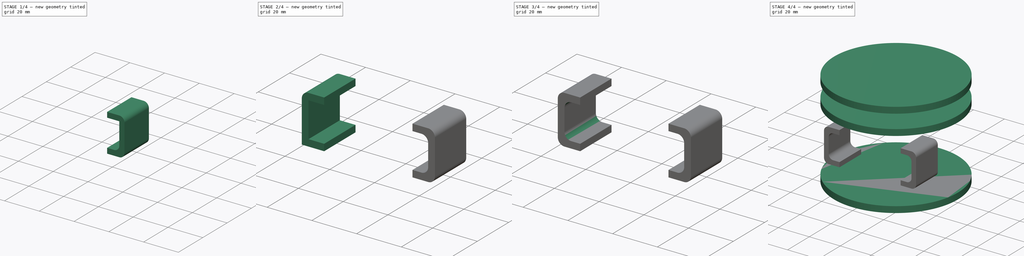
[diagram: build sequence overview — one tinted view per stage of 4, left to right]
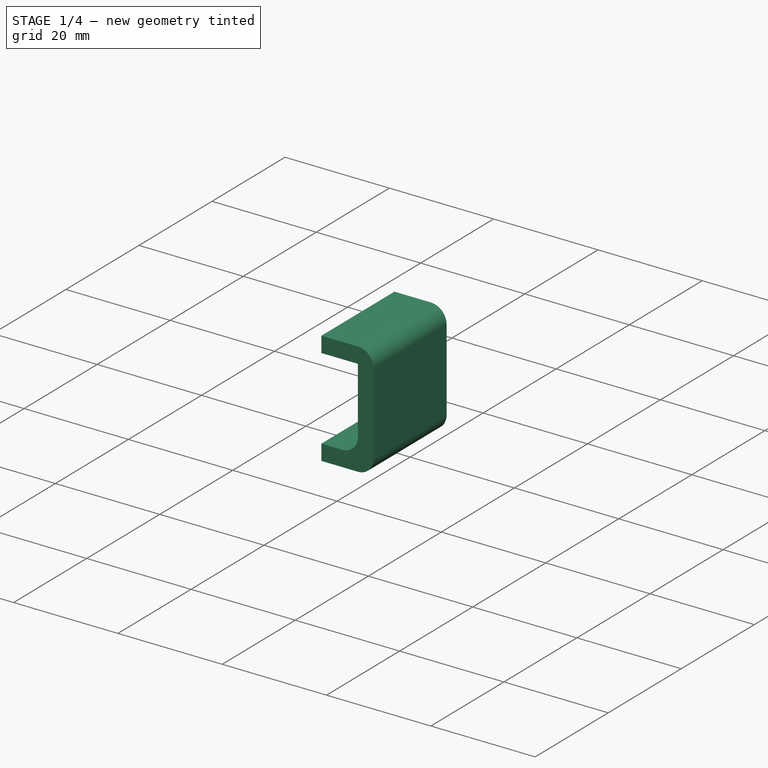
[diagram: stage 1 of 4 — iso view after this stage's code; geometry added in this stage tinted green]
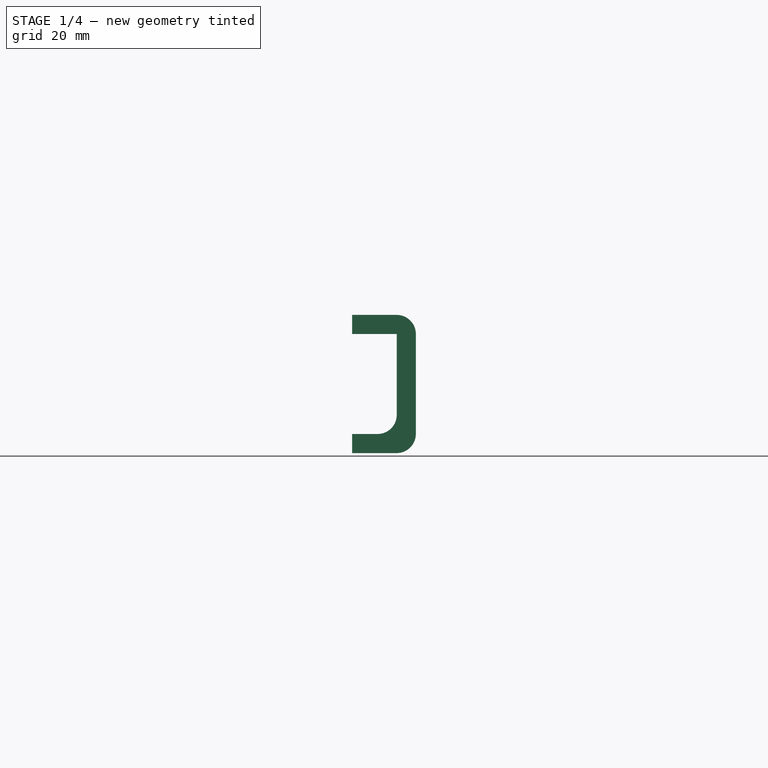
[diagram: stage 1 of 4 — front view after this stage's code; geometry added in this stage tinted green]
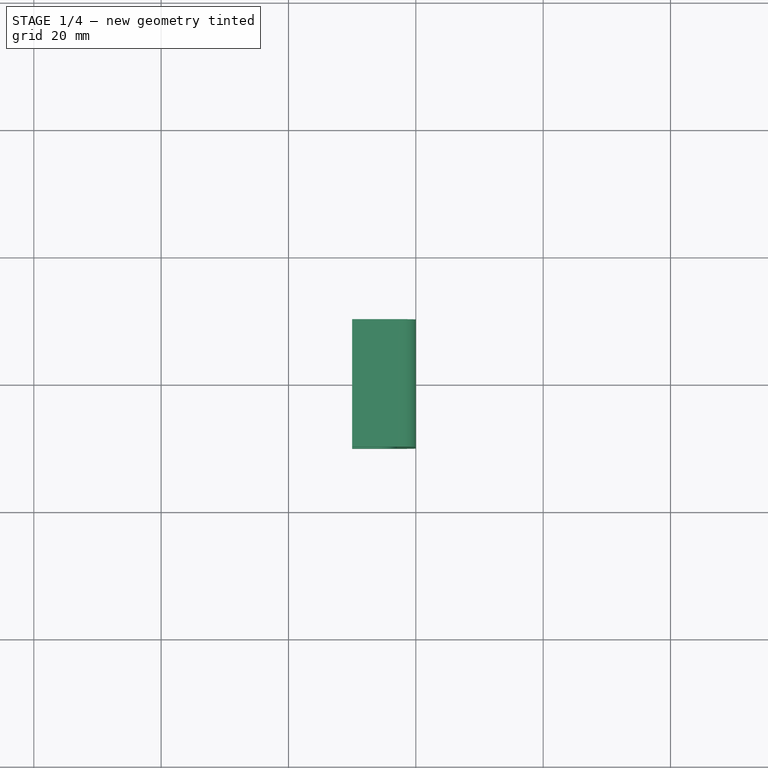
[diagram: stage 1 of 4 — top view after this stage's code; geometry added in this stage tinted green]
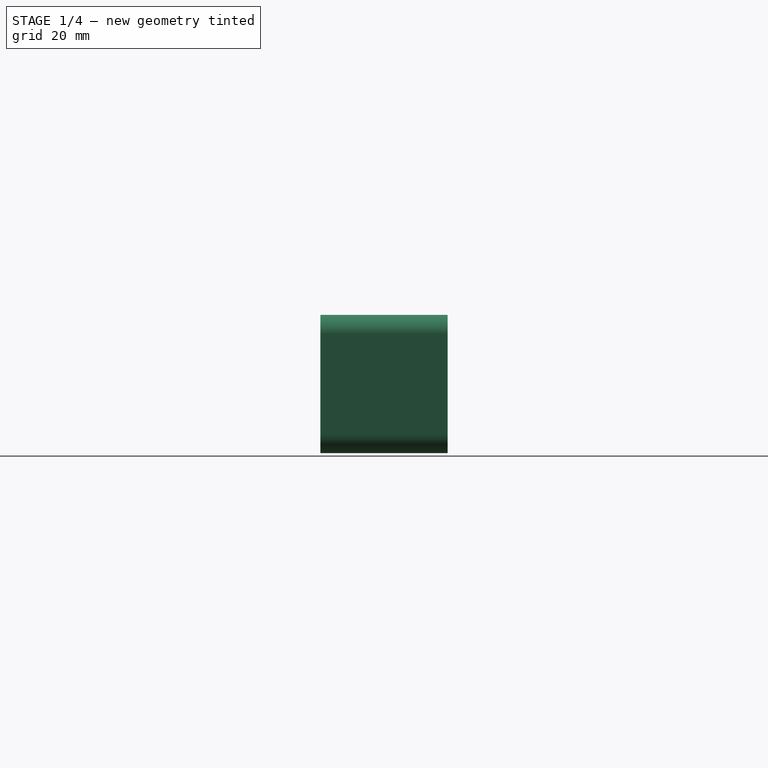
[diagram: stage 1 of 4 — right view after this stage's code; geometry added in this stage tinted green]
FCSTD DOCUMENT  (FreeCAD 0.17R7837 (Git))
Label: ConnectorRivet
License: All rights reserved
LicenseURL: http://en.wikipedia.org/wiki/All_rights_reserved
objects: Sketcher::SketchObject×9, Part::Fillet×8, PartDesign::Body×6, PartDesign::Pad×4, Part::Sweep×2, Part::Feature×1, App::MeasureDistance×1
note: 34 computed .brp shape members not serialized (recipe doc carries the construction recipe); baked Part::Feature solids carry a one-line shape summary decoded from their .brp

FEATURE [Sketcher::SketchObject] Sketch006
  MapMode = 5
  Support = -> [XY_Plane004]
  sketch-geometry (1):
    g0: Circle CenterX=-34.0339 CenterY=-4.94797 CenterZ=0 NormalX=0 NormalY=0 NormalZ=1 Radius=0.078105
FEATURE [PartDesign::Body] Body004
  Model = -> [Sketch004,Sketch005,Sketch006]
  Origin = -> Body004Origin
FEATURE [PartDesign::Body] Body005
  Origin = -> Body005Origin
FEATURE [Sketcher::SketchObject] Sketch007
  MapMode = 5
  Placement = pos=(0,0,0) rot=(0,0.707107,0.707107;3.14159rad)
  Support = -> [XZ_Plane006]
  superPlacement = pos=(0,0,0) rot=(0,1,0;3.14159rad)
  sketch-geometry (8):
    g0: LineSegment StartX=-10 StartY=25.7 StartZ=0 EndX=-20 EndY=25.7 EndZ=0
    g1: LineSegment StartX=-20 StartY=25.7 StartZ=0 EndX=-20 EndY=4 EndZ=0
    g2: LineSegment StartX=-20 StartY=4 StartZ=0 EndX=-10 EndY=4 EndZ=0
    g3: LineSegment StartX=-10 StartY=4 StartZ=0 EndX=-10 EndY=7 EndZ=0
    g4: LineSegment StartX=-10 StartY=7 StartZ=0 EndX=-17 EndY=7 EndZ=0
    g5: LineSegment StartX=-17 StartY=7 StartZ=0 EndX=-17 EndY=22.7 EndZ=0
    g6: LineSegment StartX=-17 StartY=22.7 StartZ=0 EndX=-10 EndY=22.7 EndZ=0
    g7: LineSegment StartX=-10 StartY=22.7 StartZ=0 EndX=-10 EndY=25.7 EndZ=0
  constraints (24):
    c: Horizontal(g0)
    c: Vertical(g1)
    c: Horizontal(g2)
    c: Vertical(g5)
    c: Horizontal(g6)
    c: Vertical(g7)
    c: DistanceY(g1,g1) = 21.7
    c: Horizontal(g4)
    c: Vertical(g3)
    c: DistanceY(g7,g7) = 3
    c: DistanceY(g3,g3) = 3
    c: DistanceX(g0,g0) = 10
    c: DistanceX(g6,g6) = 7
    c: DistanceX(g2,g2) = 10
    c: DistanceX(g-2,g6) = -10
    c: Coincident(g0,g1)
    c: Coincident(g0,g7)
    c: Coincident(g6,g7)
    c: Coincident(g1,g2)
    c: Coincident(g3,g4)
    c: Coincident(g2,g3)
    c: Coincident(g4,g5)
    c: Coincident(g5,g6)
    c: DistanceY(g-1,g2) = 4
FEATURE [Sketcher::SketchObject] Sketch008
  MapMode = 5
  Support = -> [XY_Plane006]
  sketch-geometry (1):
    g0: LineSegment StartX=-30 StartY=10 StartZ=0 EndX=-30 EndY=-10 EndZ=0
  constraints (4):
    c: Vertical(g0)
    c: Symmetric(g0,g0,g-1)
    c: Distance(g0) = 20
    c: Distance(g-1,g0) = 30
FEATURE [Part::Sweep] Sweep001
  Frenet = false
  Sections = -> [Sketch007]
  Solid = true
  Spine = -> Sketch008 [Edge1]
  Transition = 1
FEATURE [Part::Fillet] Fillet004
  Base = -> Sweep001
  Edges = 1 edges r=3: [Edge3]
FEATURE [Part::Fillet] Fillet005
  Base = -> Fillet004
  Edges = 1 edges r=3: [Edge23]
FEATURE [Part::Fillet] Fillet006
  Base = -> Fillet005
  Edges = 1 edges r=3: [Edge26]
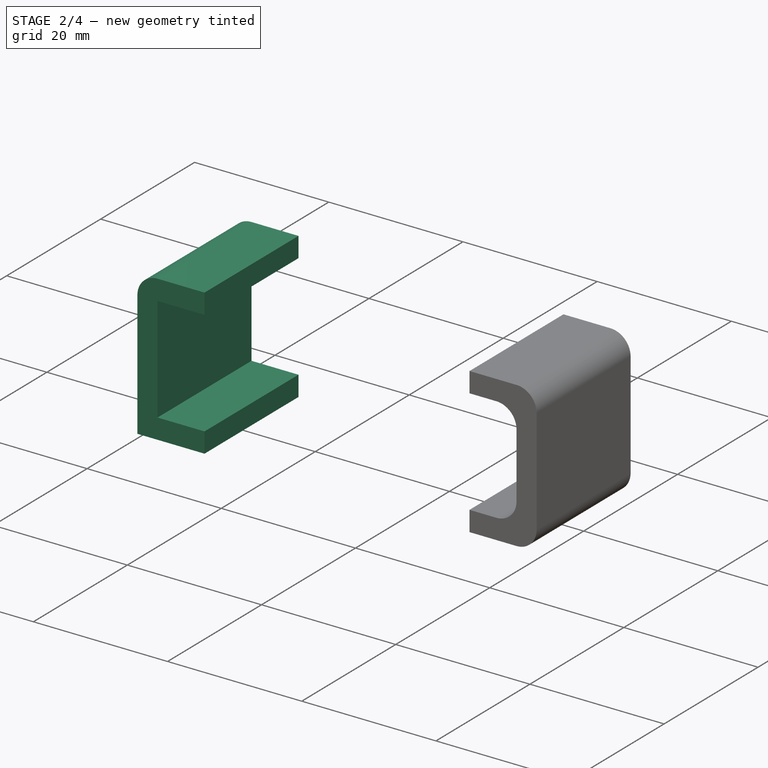
[diagram: stage 2 of 4 — iso view after this stage's code; geometry added in this stage tinted green]
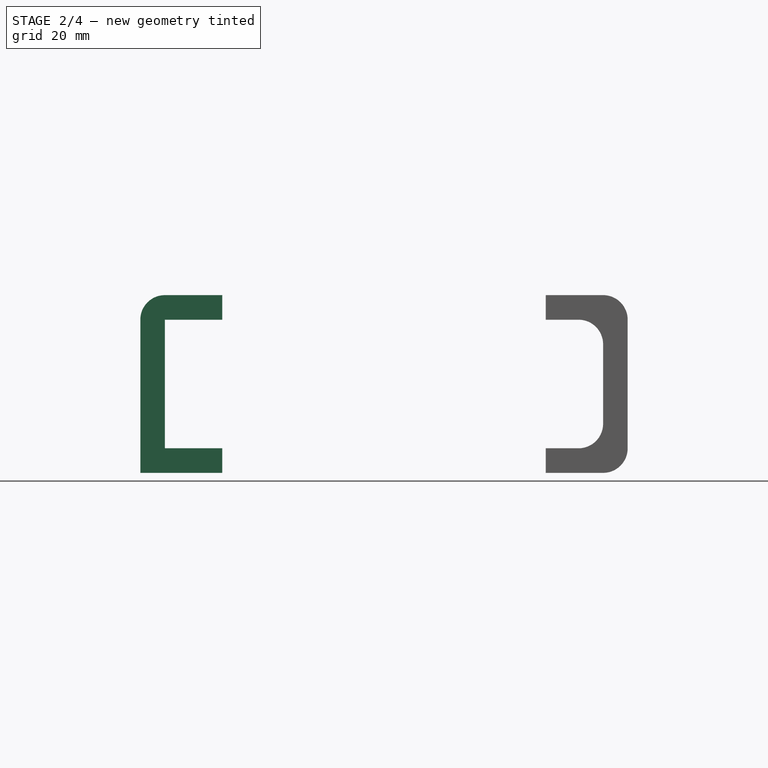
[diagram: stage 2 of 4 — front view after this stage's code; geometry added in this stage tinted green]
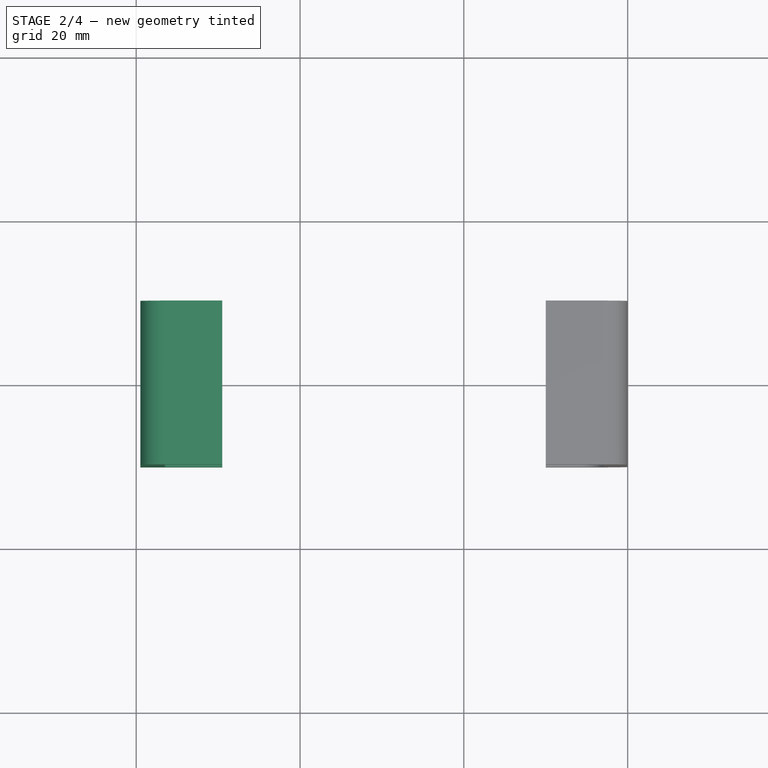
[diagram: stage 2 of 4 — top view after this stage's code; geometry added in this stage tinted green]
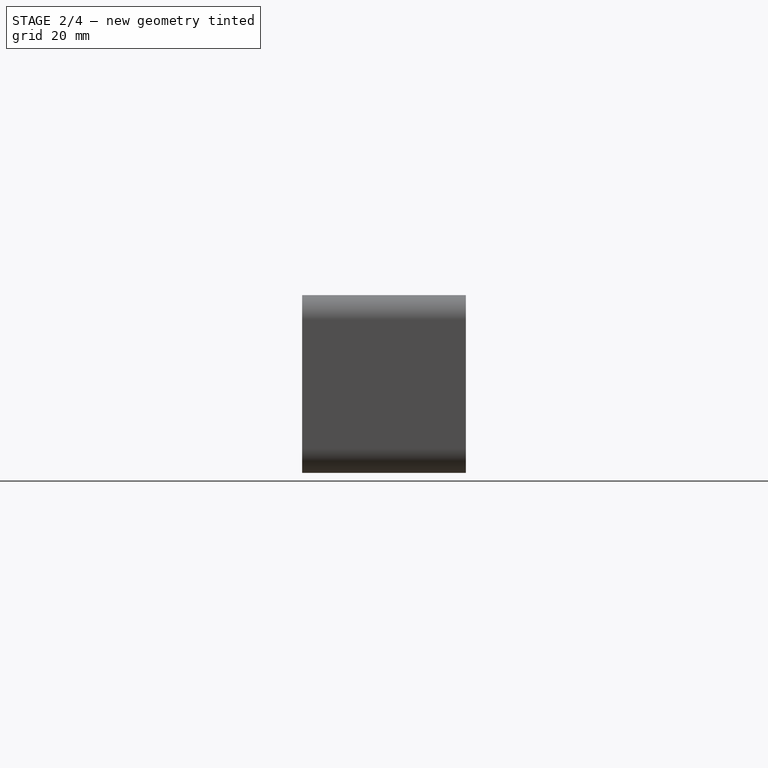
[diagram: stage 2 of 4 — right view after this stage's code; geometry added in this stage tinted green]
FEATURE [PartDesign::Body] Body003
  Model = -> [Sketch003,Pad003]
  Origin = -> BodyOrigin001
  Tip = -> Pad003
FEATURE [App::MeasureDistance] Distance  label="Distance: 61.9949 mm"
  Distance = 61.9949
  P1 = (39.9998,-0.00836888,62)
  P2 = (40,0,0.00512276)
FEATURE [Sketcher::SketchObject] Sketch004
  MapMode = 5
  Placement = pos=(0,0,0) rot=(1,0,0;1.5708rad)
  Support = -> [XZ_Plane004]
  sketch-geometry (8):
    g0: LineSegment StartX=-29.5 StartY=25.7 StartZ=0 EndX=-39.5 EndY=25.7 EndZ=0
    g1: LineSegment StartX=-39.5 StartY=25.7 StartZ=0 EndX=-39.5 EndY=4 EndZ=0
    g2: LineSegment StartX=-39.5 StartY=4 StartZ=0 EndX=-29.5 EndY=4 EndZ=0
    g3: LineSegment StartX=-29.5 StartY=4 StartZ=0 EndX=-29.5 EndY=7 EndZ=0
    g4: LineSegment StartX=-29.5 StartY=7 StartZ=0 EndX=-36.5 EndY=7 EndZ=0
    g5: LineSegment StartX=-36.5 StartY=7 StartZ=0 EndX=-36.5 EndY=22.7 EndZ=0
    g6: LineSegment StartX=-36.5 StartY=22.7 StartZ=0 EndX=-29.5 EndY=22.7 EndZ=0
    g7: LineSegment StartX=-29.5 StartY=22.7 StartZ=0 EndX=-29.5 EndY=25.7 EndZ=0
  constraints (24):
    c: Horizontal(g0)
    c: Vertical(g1)
    c: Horizontal(g2)
    c: Vertical(g5)
    c: Horizontal(g6)
    c: Vertical(g7)
    c: DistanceY(g1,g1) = 21.7
    c: Horizontal(g4)
    c: Vertical(g3)
    c: DistanceY(g7,g7) = 3
    c: DistanceY(g3,g3) = 3
    c: DistanceX(g0,g0) = 10
    c: DistanceX(g6,g6) = 7
    c: DistanceX(g2,g2) = 10
    c: DistanceX(g-2,g6) = -29.5
    c: Coincident(g0,g1)
    c: Coincident(g0,g7)
    c: Coincident(g6,g7)
    c: Coincident(g1,g2)
    c: Coincident(g3,g4)
    c: Coincident(g2,g3)
    c: Coincident(g4,g5)
    c: Coincident(g5,g6)
    c: DistanceY(g-1,g2) = 4
FEATURE [Sketcher::SketchObject] Sketch005
  MapMode = 5
  Support = -> [XY_Plane004]
  sketch-geometry (1):
    g0: LineSegment StartX=-30 StartY=10 StartZ=0 EndX=-30 EndY=-10 EndZ=0
  constraints (4):
    c: Vertical(g0)
    c: Symmetric(g0,g0,g-1)
    c: Distance(g0) = 20
    c: Distance(g-1,g0) = 30
FEATURE [Part::Sweep] Sweep
  Frenet = false
  Sections = -> [Sketch004]
  Solid = true
  Spine = -> Sketch005 [Edge1]
  Transition = 1
FEATURE [Part::Fillet] Fillet
  Base = -> Sweep
  Edges = 1 edges r=3: [Edge3]
FEATURE [Part::Fillet] Fillet007
  Base = -> Fillet006
  Edges = 1 edges r=3: [Edge19]
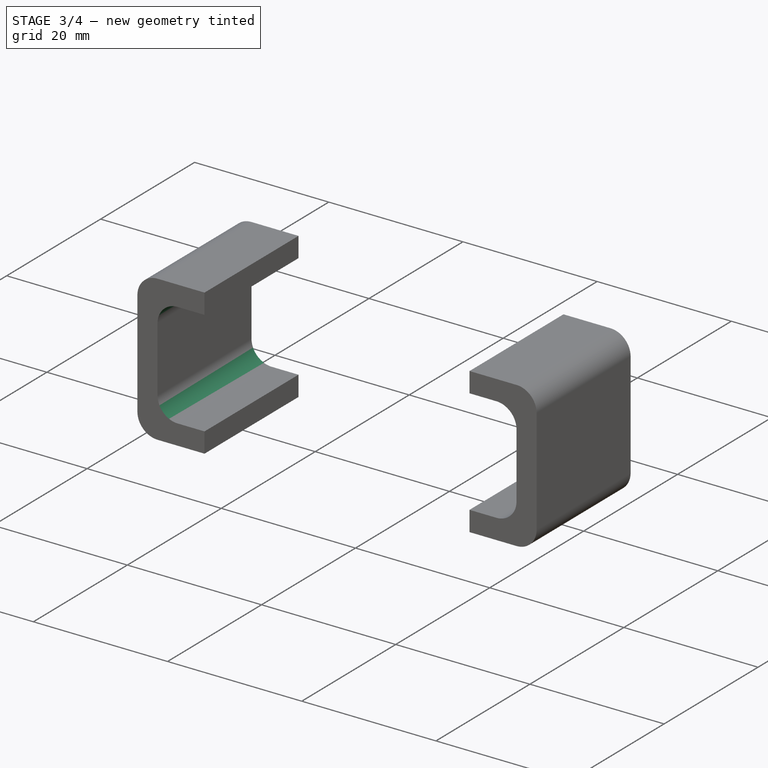
[diagram: stage 3 of 4 — iso view after this stage's code; geometry added in this stage tinted green]
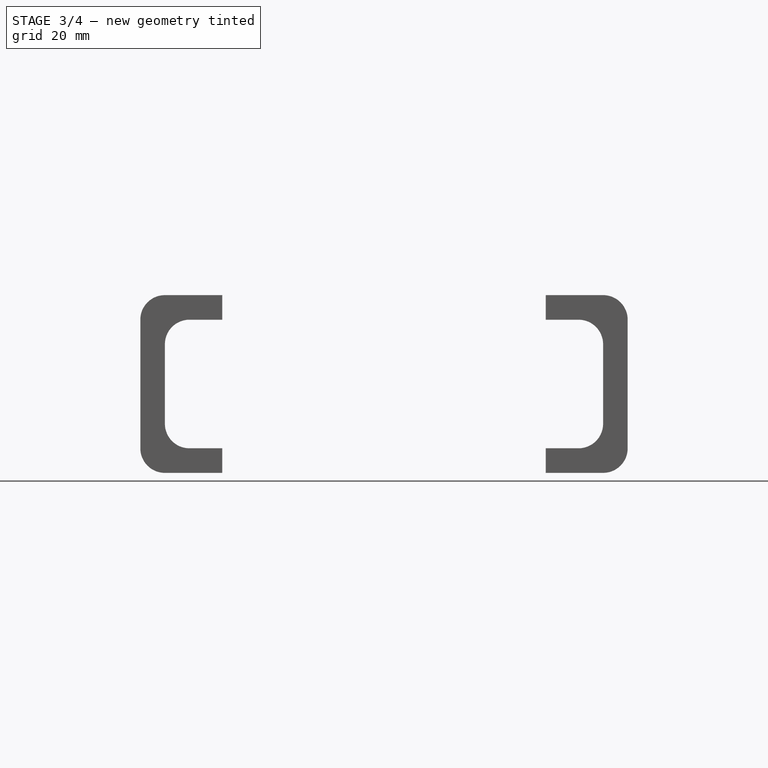
[diagram: stage 3 of 4 — front view after this stage's code; geometry added in this stage tinted green]
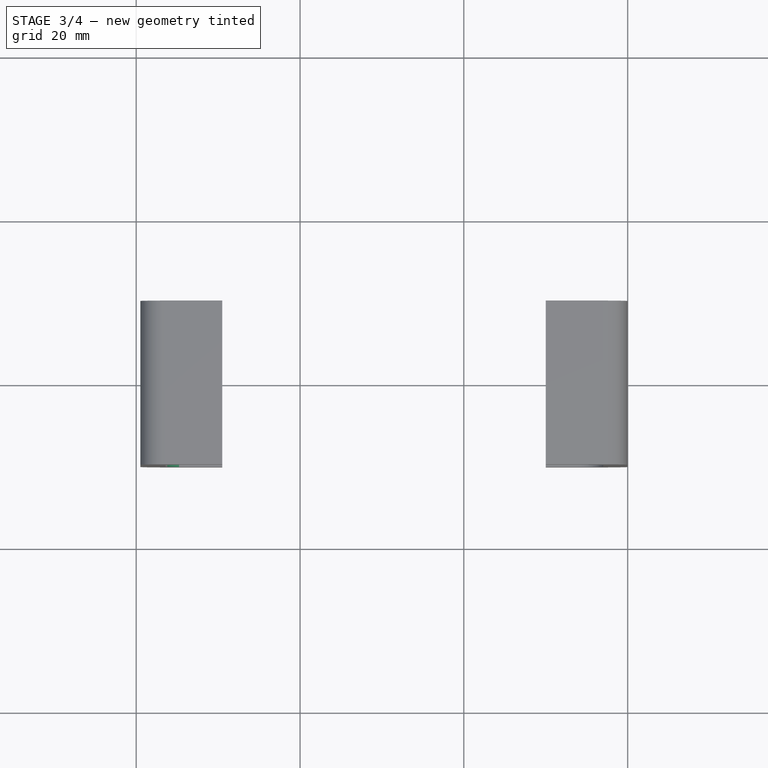
[diagram: stage 3 of 4 — top view after this stage's code; geometry added in this stage tinted green]
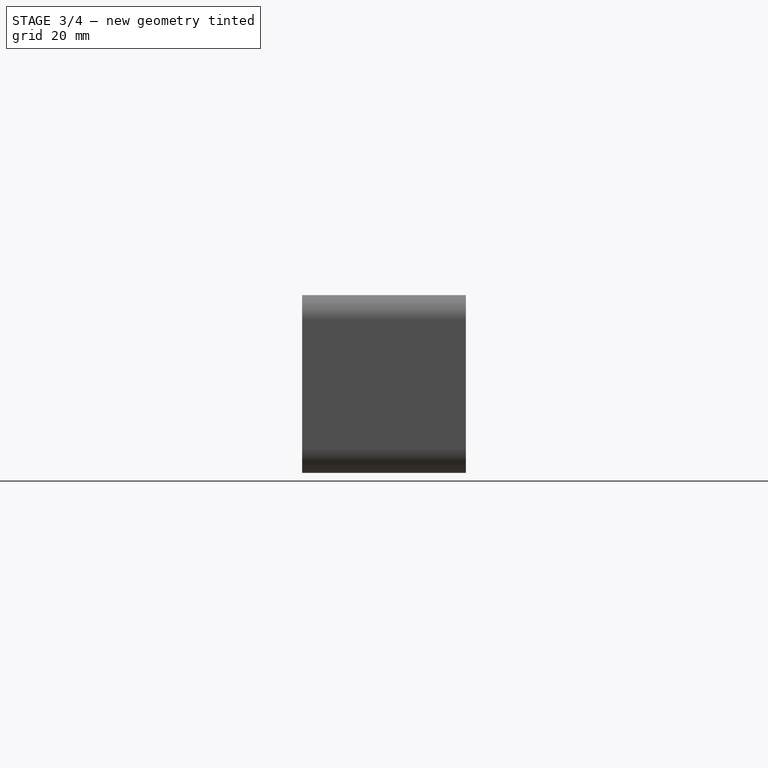
[diagram: stage 3 of 4 — right view after this stage's code; geometry added in this stage tinted green]
FEATURE [Part::Fillet] Fillet001
  Base = -> Fillet
  Edges = 1 edges r=3: [Edge23]
FEATURE [Part::Fillet] Fillet002
  Base = -> Fillet001
  Edges = 1 edges r=3: [Edge26]
FEATURE [Part::Fillet] Fillet003
  Base = -> Fillet002
  Edges = 1 edges r=3: [Edge19]
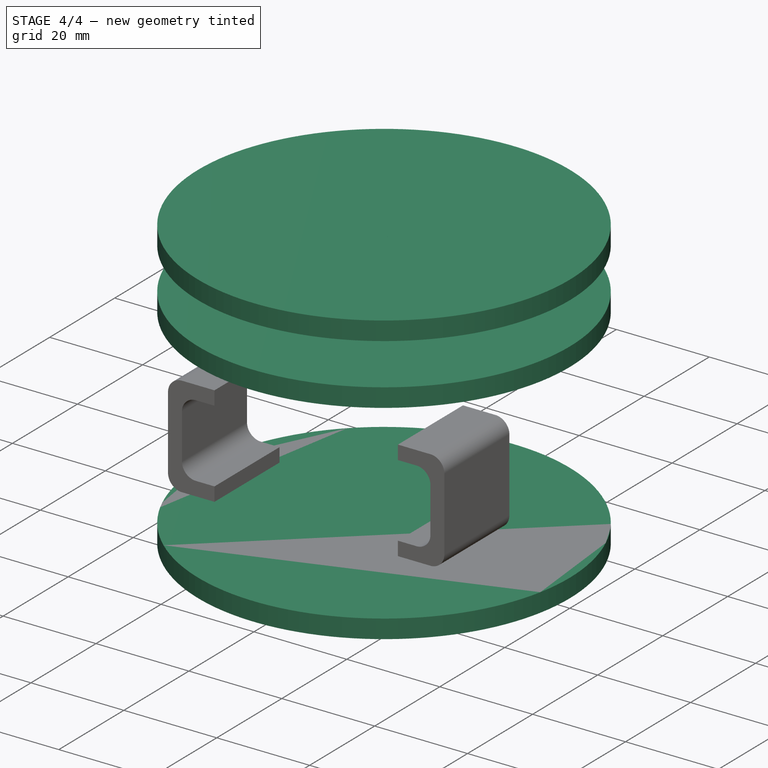
[diagram: stage 4 of 4 — iso view after this stage's code; geometry added in this stage tinted green]
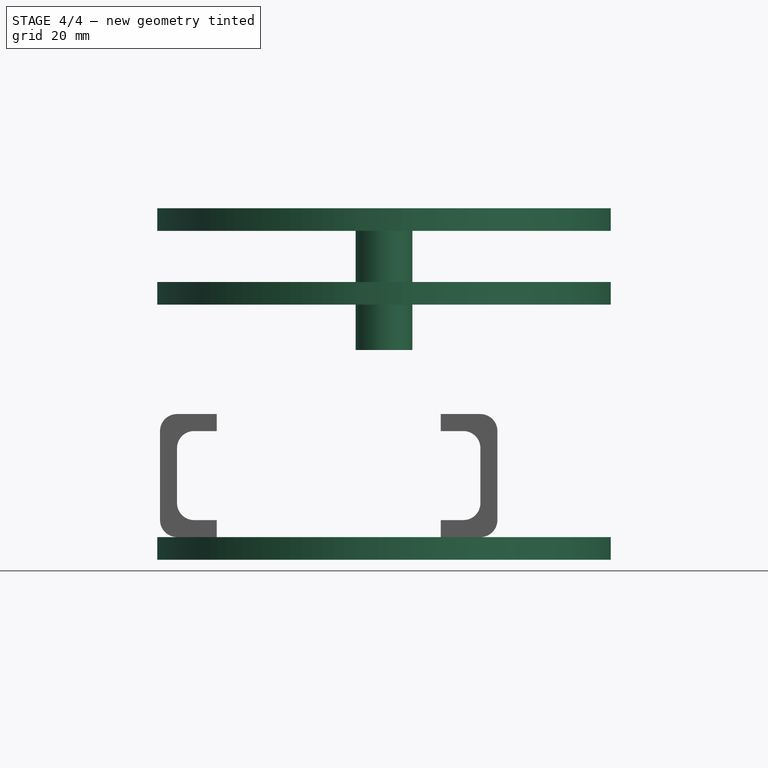
[diagram: stage 4 of 4 — front view after this stage's code; geometry added in this stage tinted green]
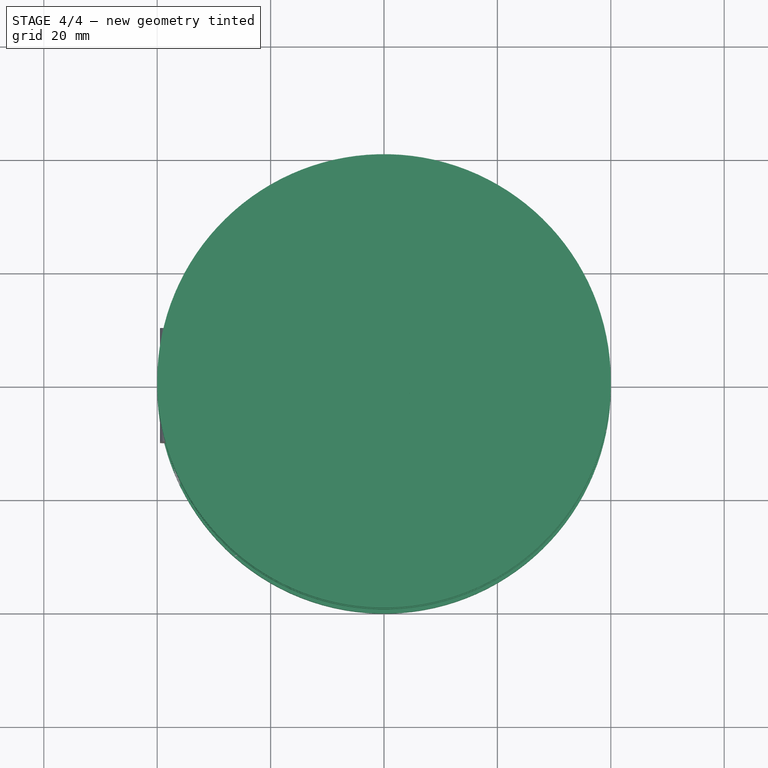
[diagram: stage 4 of 4 — top view after this stage's code; geometry added in this stage tinted green]
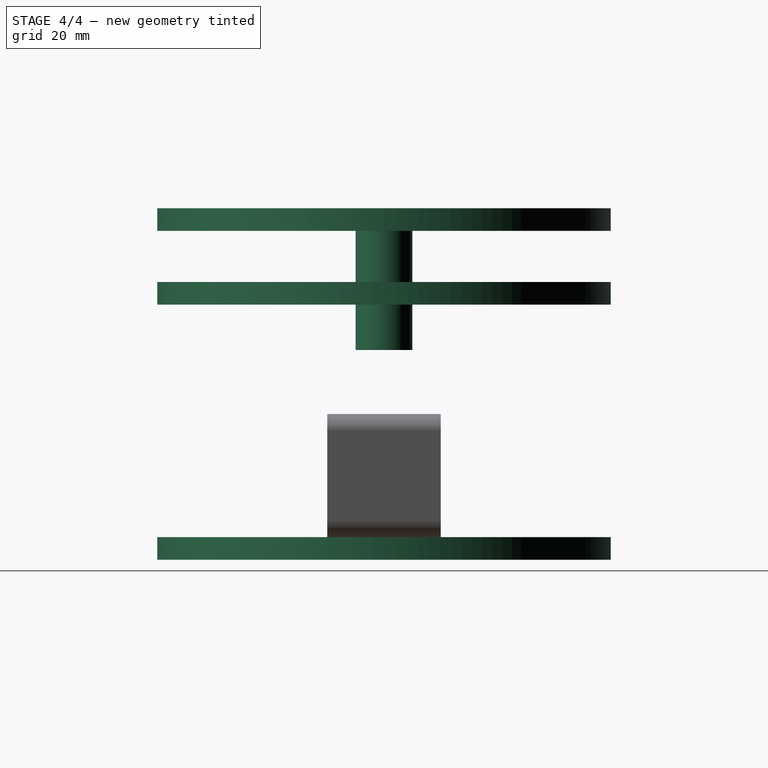
[diagram: stage 4 of 4 — right view after this stage's code; geometry added in this stage tinted green]
FEATURE [Sketcher::SketchObject] Sketch
  MapMode = 5
  Support = -> [XY_Plane]
  sketch-geometry (1):
    g0: Circle CenterX=0 CenterY=0 CenterZ=0 NormalX=0 NormalY=0 NormalZ=1 Radius=40
  constraints (2):
    c: Coincident(g0,g-1)
    c: Radius(g0) = 40
FEATURE [PartDesign::Pad] Pad
  Length = 4
  Length2 = 100
  Profile = -> Sketch
  Type = 0
FEATURE [PartDesign::Body] Body
  Model = -> [Sketch,Pad]
  Origin = -> BodyOrigin
  Tip = -> Pad
FEATURE [Sketcher::SketchObject] Sketch001
  MapMode = 5
  Placement = pos=(0,0,58) rot=(0,0,1;0rad)
  Support = -> [XY_Plane001]
  superPlacement = pos=(0,0,58) rot=(0,0,1;0rad)
  sketch-geometry (1):
    g0: Circle CenterX=0 CenterY=0 CenterZ=0 NormalX=0 NormalY=0 NormalZ=1 Radius=40
  constraints (2):
    c: Coincident(g0,g-1)
    c: Radius(g0) = 40
FEATURE [PartDesign::Pad] Pad001
  Length = 4
  Length2 = 100
  Profile = -> Sketch001
  Type = 0
FEATURE [PartDesign::Body] Body001
  Model = -> [Sketch001,Pad001]
  Origin = -> Body001Origin
  Tip = -> Pad001
FEATURE [Sketcher::SketchObject] Sketch002
  MapMode = 5
  Placement = pos=(0,0,37) rot=(0,0,1;0rad)
  Support = -> [XY_Plane002]
  superPlacement = pos=(0,0,37) rot=(0,0,1;0rad)
  sketch-geometry (1):
    g0: Circle CenterX=0 CenterY=0 CenterZ=0 NormalX=0 NormalY=0 NormalZ=1 Radius=5
  constraints (2):
    c: Coincident(g0,g-1)
    c: Radius(g0) = 5
FEATURE [Part::Feature] Part__Feature  label="Servo-Futaba3003-final"
  Placement = pos=(-9.45,0,0) rot=(0,0,1;0rad)
  shape: bbox 55.5 x 20 x 41.74 mm, 365 faces (baked)
FEATURE [PartDesign::Pad] Pad002
  Length = 25
  Length2 = 100
  Profile = -> Sketch002
  Type = 0
FEATURE [PartDesign::Body] Body002
  Model = -> [Sketch002,Pad002]
  Origin = -> Body002Origin
  Tip = -> Pad002
FEATURE [Sketcher::SketchObject] Sketch003
  MapMode = 5
  Placement = pos=(0,0,45) rot=(0,0,1;0rad)
  Support = -> [XY_Plane003]
  superPlacement = pos=(0,0,45) rot=(0,0,1;0rad)
  sketch-geometry (1):
    g0: Circle CenterX=0 CenterY=0 CenterZ=0 NormalX=0 NormalY=0 NormalZ=1 Radius=40
  constraints (2):
    c: Coincident(g0,g-1)
    c: Radius(g0) = 40
FEATURE [PartDesign::Pad] Pad003
  Length = 4
  Length2 = 100
  Profile = -> Sketch003
  Type = 0
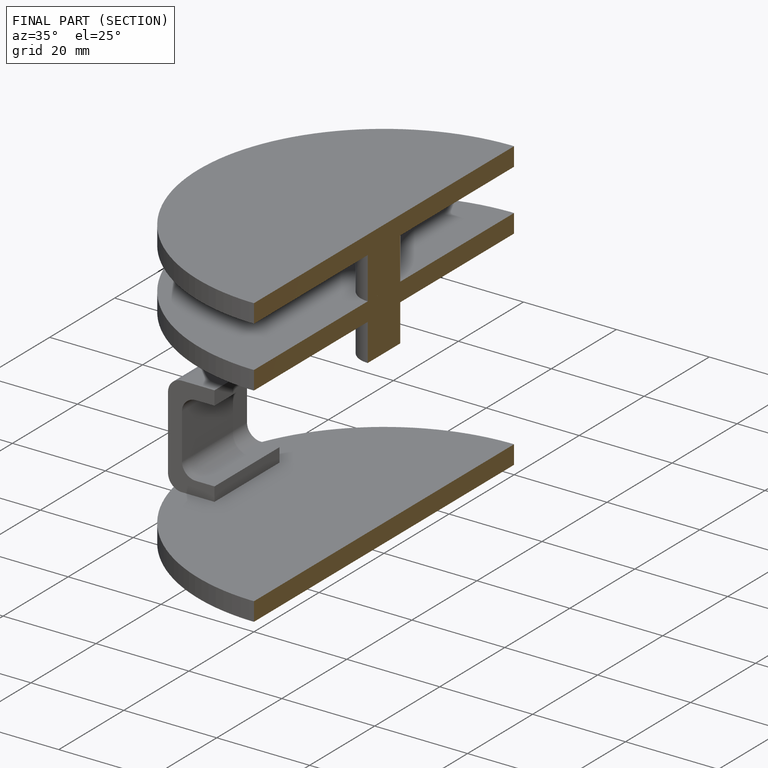
[diagram: finished part — half-section view (interior)]
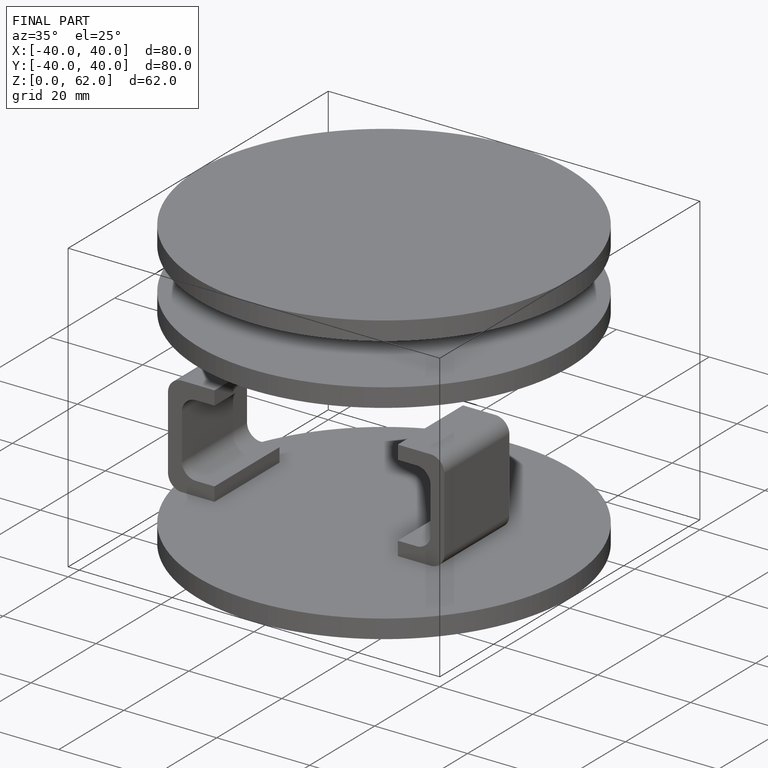
[diagram: finished part — iso view with bounding-box wireframe]
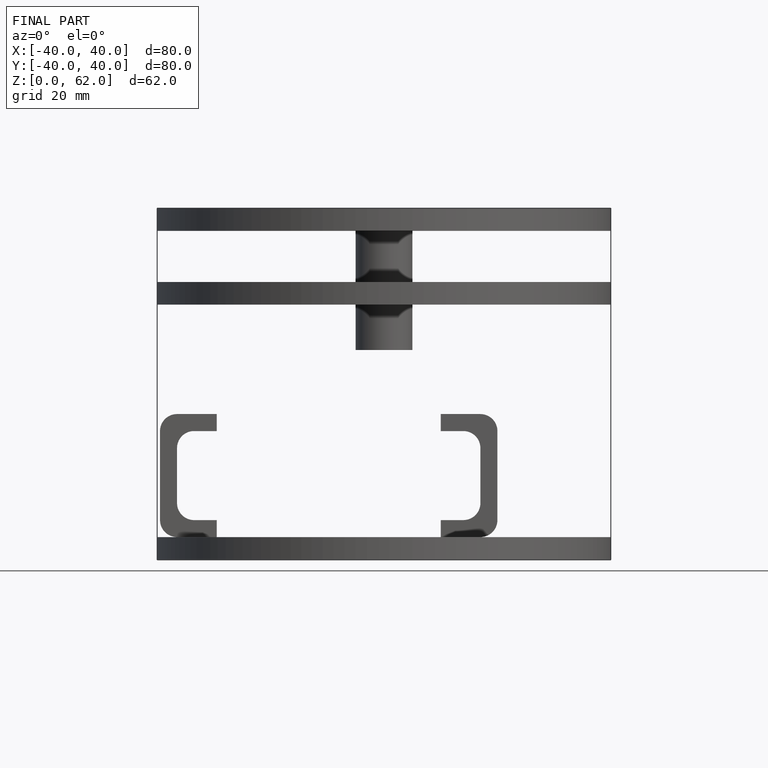
[diagram: finished part — front view with bounding-box wireframe]
